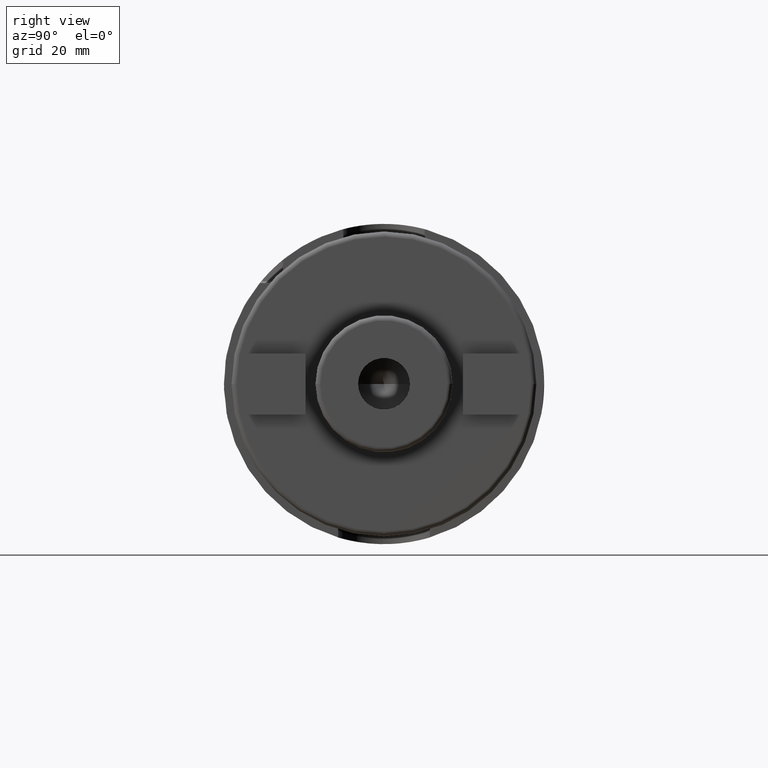
[diagram: clean part render]
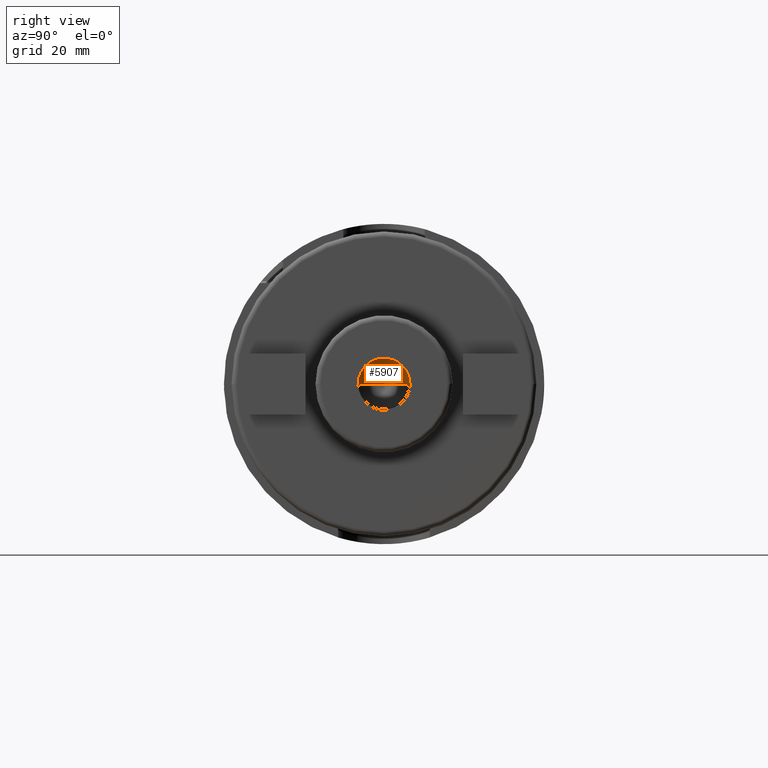
[diagram: same view with one face highlighted and labeled with its STEP entity id]
A machine part, right view. The second image highlights one B-rep face of the part: STEP entity #5907.
In plain terms, the highlighted conical surface has half-angle 59 deg.
Its self-contained STEP definition (entity closure, byte-faithful):
#2262=CARTESIAN_POINT('',(4.7E1,0.E0,0.E0));
#2263=DIRECTION('',(-1.E0,0.E0,0.E0));
#2264=DIRECTION('',(0.E0,-1.E0,0.E0));
#2265=AXIS2_PLACEMENT_3D('',#2262,#2263,#2264);
#2271=DIRECTION('',(5.150380749101E-1,-8.571673007021E-1,0.E0));
#2272=VECTOR('',#2271,5.949830325798E0);
#2273=CARTESIAN_POINT('',(4.393561084296E1,0.E0,0.E0));
#2274=LINE('',#2273,#2272);
#2275=DIRECTION('',(5.150380749101E-1,8.571673007021E-1,0.E0));
#2276=VECTOR('',#2275,5.949830325798E0);
#2277=CARTESIAN_POINT('',(4.393561084296E1,0.E0,0.E0));
#2278=LINE('',#2277,#2276);
#3329=CARTESIAN_POINT('',(4.393561084296E1,0.E0,0.E0));
#3330=CARTESIAN_POINT('',(4.7E1,-5.1E0,0.E0));
#3331=VERTEX_POINT('',#3329);
#3332=VERTEX_POINT('',#3330);
#3333=CARTESIAN_POINT('',(4.7E1,5.1E0,0.E0));
#3334=VERTEX_POINT('',#3333);
#5895=CARTESIAN_POINT('',(4.546780542148E1,0.E0,0.E0));
#5896=DIRECTION('',(1.E0,0.E0,0.E0));
#5897=DIRECTION('',(0.E0,-1.E0,0.E0));
#5898=AXIS2_PLACEMENT_3D('',#5895,#5896,#5897);
#5899=CONICAL_SURFACE('',#5898,2.55E0,5.9E1);
#5901=ORIENTED_EDGE('',*,*,#5900,.T.);
#5902=ORIENTED_EDGE('',*,*,#5889,.T.);
#5904=ORIENTED_EDGE('',*,*,#5903,.F.);
#5905=EDGE_LOOP('',(#5901,#5902,#5904));
#5906=FACE_OUTER_BOUND('',#5905,.F.);
#5907=ADVANCED_FACE('',(#5906),#5899,.F.);
#2266=CIRCLE('',#2265,5.1E0);
#5889=EDGE_CURVE('',#3332,#3334,#2266,.T.);
#5900=EDGE_CURVE('',#3331,#3332,#2274,.T.);
#5903=EDGE_CURVE('',#3331,#3334,#2278,.T.);